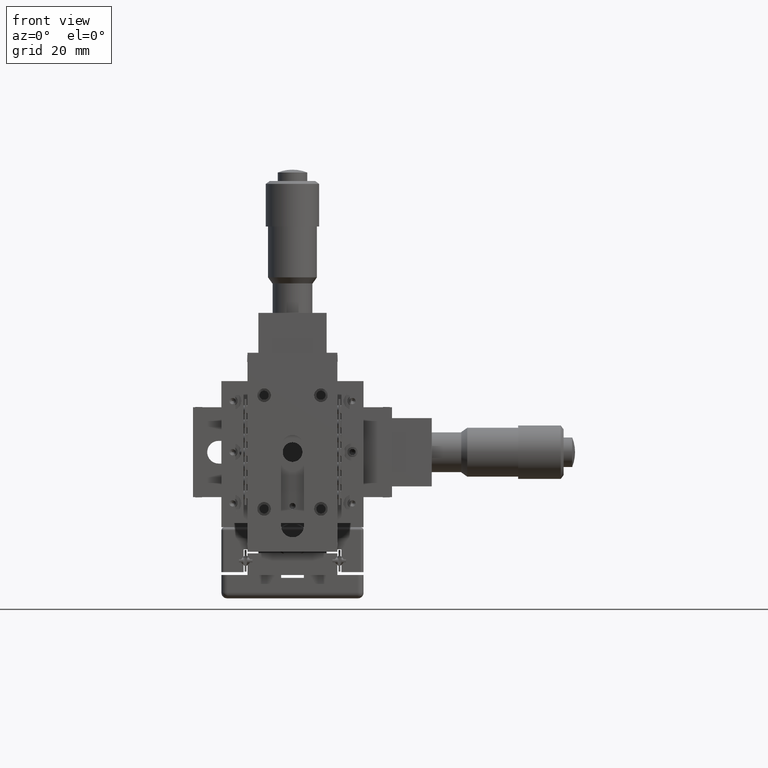
[diagram: clean part render]
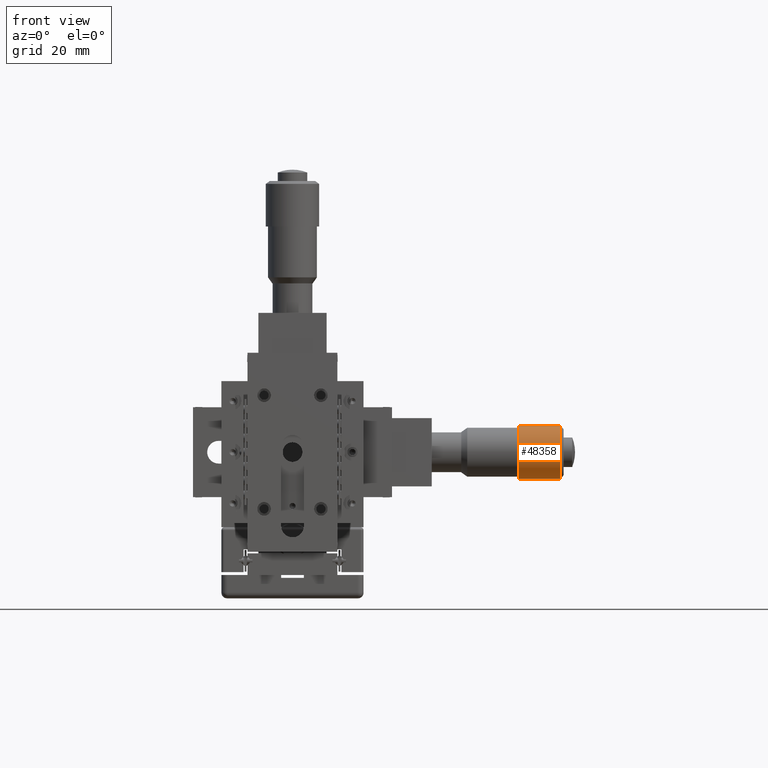
[diagram: same view with one face highlighted and labeled with its STEP entity id]
A machine part, front view. The second image highlights one B-rep face of the part: STEP entity #48358.
In plain terms, the highlighted cylindrical surface (edge-blend (fillet) strip) has radius 4.7 mm, axis along (1, -0, -0).
Its self-contained STEP definition (entity closure, byte-faithful):
#107 = EDGE_CURVE ( 'NONE', #75831, #87123, #112227, .T. ) ;
#2364 = DIRECTION ( 'NONE',  ( 1.000000000000000000, -1.089067458954079100E-015, -2.775557561563776400E-016 ) ) ;
#2696 = CARTESIAN_POINT ( 'NONE',  ( 47.19746993000087800, 14.73741005905928800, 4.697990897784811700 ) ) ;
#4579 = CARTESIAN_POINT ( 'NONE',  ( 47.19746993000087800, 14.59999999999991100, -3.741578407882681400E-014 ) ) ;
#5341 = DIRECTION ( 'NONE',  ( 0.0000000000000000000, -0.02923618277858842900, -0.9995725314435850400 ) ) ;
#6164 = ORIENTED_EDGE ( 'NONE', *, *, #84271, .T. ) ;
#6239 = CIRCLE ( 'NONE', #48591, 4.700000000000014400 ) ;
#6271 = CARTESIAN_POINT ( 'NONE',  ( 47.19746993000087800, 14.46258994094054600, -4.697990897784901400 ) ) ;
#9621 = FACE_OUTER_BOUND ( 'NONE', #47825, .T. ) ;
#10368 = VERTEX_POINT ( 'NONE', #97098 ) ;
#11035 = CYLINDRICAL_SURFACE ( 'NONE', #30554, 4.700000000000014400 ) ;
#20622 = AXIS2_PLACEMENT_3D ( 'NONE', #4579, #21773, #5341 ) ;
#21025 = CARTESIAN_POINT ( 'NONE',  ( 39.69746993000088500, 14.59999999999992100, -3.507413605110770000E-014 ) ) ;
#21773 = DIRECTION ( 'NONE',  ( 1.000000000000000000, -1.089067458954079100E-015, -2.775557561563776400E-016 ) ) ;
#30554 = AXIS2_PLACEMENT_3D ( 'NONE', #39641, #65472, #82305 ) ;
#31061 = ORIENTED_EDGE ( 'NONE', *, *, #106117, .F. ) ;
#39641 = CARTESIAN_POINT ( 'NONE',  ( 83.73849299920850300, 14.59999999999987700, -4.706842169532570700E-014 ) ) ;
#44466 = ORIENTED_EDGE ( 'NONE', *, *, #55768, .F. ) ;
#46778 = VECTOR ( 'NONE', #2364, 1000.000000000000000 ) ;
#47825 = EDGE_LOOP ( 'NONE', ( #44466, #6164, #92863, #31061 ) ) ;
#48358 = ADVANCED_FACE ( 'NONE', ( #9621 ), #11035, .T. ) ;
#48591 = AXIS2_PLACEMENT_3D ( 'NONE', #21025, #55370, #56122 ) ;
#55370 = DIRECTION ( 'NONE',  ( 1.000000000000000000, -1.089067458954079100E-015, -2.775557561563776400E-016 ) ) ;
#55768 = EDGE_CURVE ( 'NONE', #10368, #55847, #109515, .T. ) ;
#55847 = VERTEX_POINT ( 'NONE', #2696 ) ;
#56122 = DIRECTION ( 'NONE',  ( 0.0000000000000000000, -0.02923618277858842900, -0.9995725314435850400 ) ) ;
#65472 = DIRECTION ( 'NONE',  ( 1.000000000000000000, -1.089067458954079100E-015, -2.775557561563776400E-016 ) ) ;
#72849 = CARTESIAN_POINT ( 'NONE',  ( 83.73849299920850300, 14.46258994094051100, -4.697990897784910300 ) ) ;
#75831 = VERTEX_POINT ( 'NONE', #92036 ) ;
#80889 = VECTOR ( 'NONE', #97356, 1000.000000000000000 ) ;
#82305 = DIRECTION ( 'NONE',  ( 0.0000000000000000000, -0.02923618277858842900, -0.9995725314435850400 ) ) ;
#84271 = EDGE_CURVE ( 'NONE', #10368, #75831, #6239, .T. ) ;
#86963 = CIRCLE ( 'NONE', #20622, 4.700000000000014400 ) ;
#87123 = VERTEX_POINT ( 'NONE', #6271 ) ;
#88261 = CARTESIAN_POINT ( 'NONE',  ( 83.73849299920850300, 14.73741005905924300, 4.697990897784817000 ) ) ;
#92036 = CARTESIAN_POINT ( 'NONE',  ( 39.69746993000088500, 14.46258994094055500, -4.697990897784898800 ) ) ;
#92863 = ORIENTED_EDGE ( 'NONE', *, *, #107, .T. ) ;
#97098 = CARTESIAN_POINT ( 'NONE',  ( 39.69746993000088500, 14.73741005905928800, 4.697990897784814400 ) ) ;
#97356 = DIRECTION ( 'NONE',  ( 1.000000000000000000, -1.089067458954079100E-015, -2.775557561563776400E-016 ) ) ;
#106117 = EDGE_CURVE ( 'NONE', #55847, #87123, #86963, .T. ) ;
#109515 = LINE ( 'NONE', #88261, #80889 ) ;
#112227 = LINE ( 'NONE', #72849, #46778 ) ;